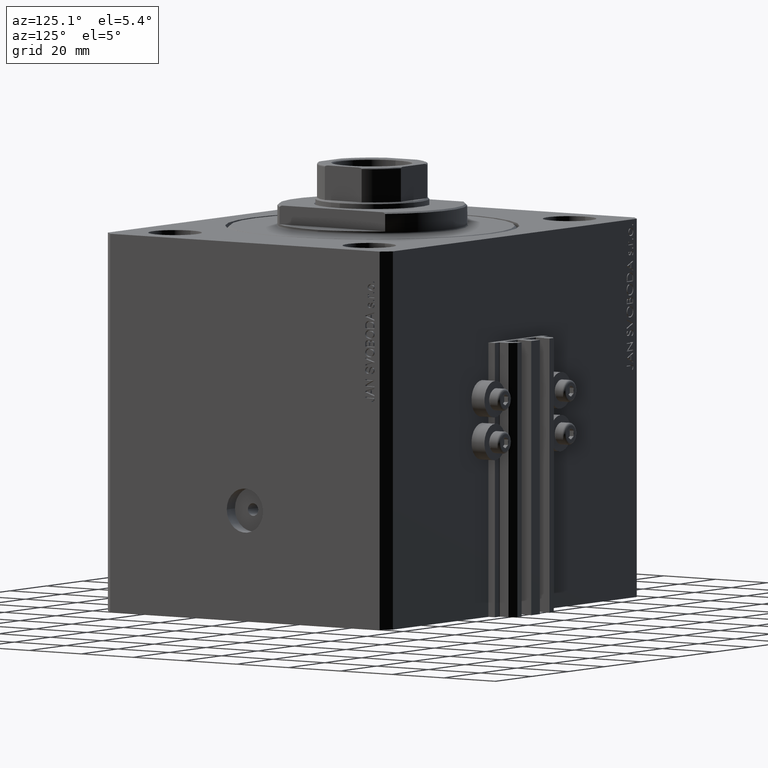
[diagram: clean part render]
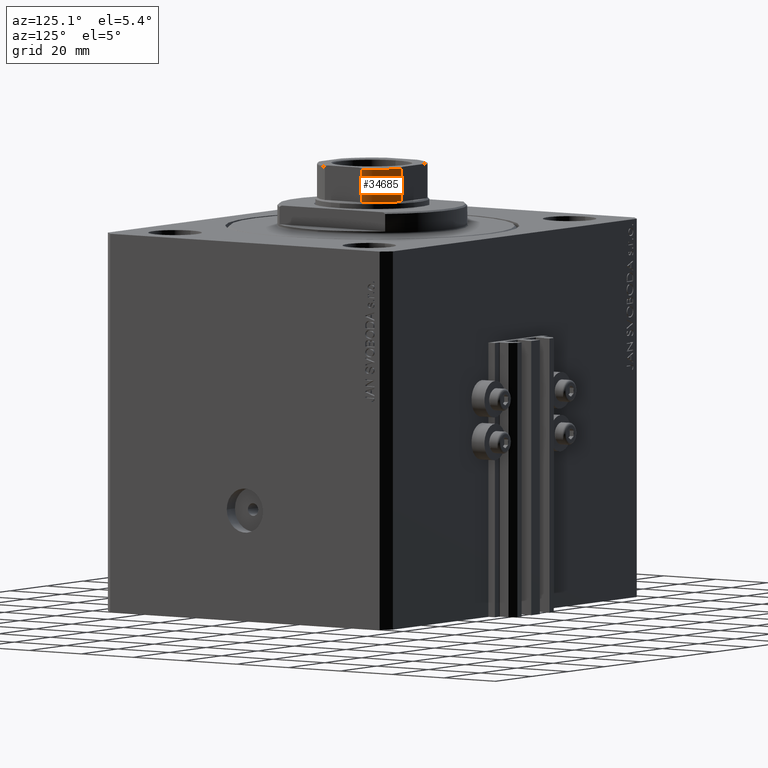
[diagram: same view with one face highlighted and labeled with its STEP entity id]
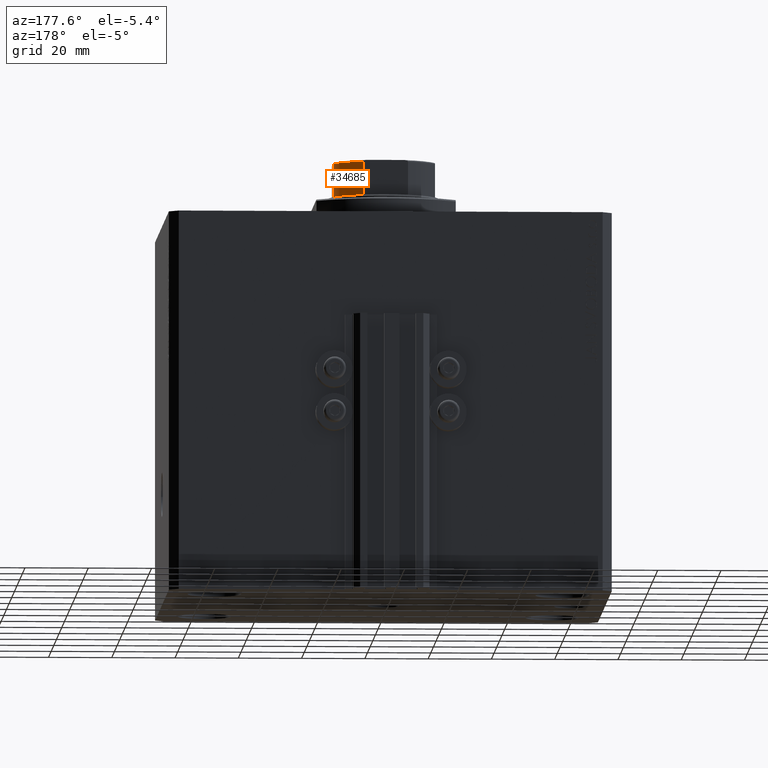
[diagram: same view with one face highlighted and labeled with its STEP entity id]
A machine part, auxiliary view. The second image highlights one B-rep face of the part: STEP entity #34685.
A second angle (auxiliary view) of the same face is appended — the face is thin or edge-on in the first view.
In plain terms, the highlighted cylindrical surface (partial cylindrical patch) has radius 17.5 mm, axis along (0, 0, 1).
Its self-contained STEP definition (entity closure, byte-faithful):
#326 = EDGE_LOOP ( 'NONE', ( #38167, #36736, #36954, #15795 ) ) ;
#2022 = FACE_OUTER_BOUND ( 'NONE', #326, .T. ) ;
#4666 = DIRECTION ( 'NONE',  ( -0.000000000000000000, -0.000000000000000000, 1.000000000000000000 ) ) ;
#5081 = CARTESIAN_POINT ( 'NONE',  ( 0.000000000000000000, 0.000000000000000000, 114.5000000000000000 ) ) ;
#5628 = CARTESIAN_POINT ( 'NONE',  ( 7.088723439378914470, 16.00000000000000000, -0.001000000000001000089 ) ) ;
#5953 = EDGE_CURVE ( 'NONE', #35031, #33012, #34857, .T. ) ;
#8906 = EDGE_CURVE ( 'NONE', #19178, #9373, #12016, .T. ) ;
#9373 = VERTEX_POINT ( 'NONE', #24600 ) ;
#10037 = CARTESIAN_POINT ( 'NONE',  ( 7.088723439378916247, 16.00000000000000355, 104.0000000000000284 ) ) ;
#11330 = DIRECTION ( 'NONE',  ( 0.000000000000000000, 0.000000000000000000, 1.000000000000000000 ) ) ;
#12016 = LINE ( 'NONE', #19428, #34002 ) ;
#12297 = CARTESIAN_POINT ( 'NONE',  ( 16.00000000000000000, 7.088723439378916247, 104.0000000000000284 ) ) ;
#13137 = AXIS2_PLACEMENT_3D ( 'NONE', #38185, #4666, #30302 ) ;
#15795 = ORIENTED_EDGE ( 'NONE', *, *, #25297, .T. ) ;
#15856 = DIRECTION ( 'NONE',  ( 1.000000000000000000, -1.776356839400250465E-15, 0.000000000000000000 ) ) ;
#17880 = CARTESIAN_POINT ( 'NONE',  ( 7.088723439378914470, 16.00000000000000000, 114.5000000000000000 ) ) ;
#18719 = AXIS2_PLACEMENT_3D ( 'NONE', #5081, #26156, #15856 ) ;
#19178 = VERTEX_POINT ( 'NONE', #12297 ) ;
#19428 = CARTESIAN_POINT ( 'NONE',  ( 16.00000000000000000, 7.088723439378916247, -0.001000000000001000089 ) ) ;
#20706 = DIRECTION ( 'NONE',  ( -0.000000000000000000, -0.000000000000000000, 1.000000000000000000 ) ) ;
#24600 = CARTESIAN_POINT ( 'NONE',  ( 16.00000000000000000, 7.088723439378916247, 114.5000000000000000 ) ) ;
#25297 = EDGE_CURVE ( 'NONE', #19178, #35031, #39776, .T. ) ;
#25925 = DIRECTION ( 'NONE',  ( 1.000000000000000000, 0.000000000000000000, 0.000000000000000000 ) ) ;
#26156 = DIRECTION ( 'NONE',  ( 0.000000000000000000, -0.000000000000000000, -1.000000000000000000 ) ) ;
#28693 = CIRCLE ( 'NONE', #18719, 17.50000000000000000 ) ;
#29534 = CARTESIAN_POINT ( 'NONE',  ( 0.000000000000000000, 0.000000000000000000, 104.0000000000000142 ) ) ;
#30302 = DIRECTION ( 'NONE',  ( 1.000000000000000000, 0.000000000000000000, 0.000000000000000000 ) ) ;
#32110 = AXIS2_PLACEMENT_3D ( 'NONE', #29534, #11330, #25925 ) ;
#33012 = VERTEX_POINT ( 'NONE', #17880 ) ;
#34002 = VECTOR ( 'NONE', #41463, 1000.000000000000000 ) ;
#34353 = CYLINDRICAL_SURFACE ( 'NONE', #13137, 17.50000000000000000 ) ;
#34685 = ADVANCED_FACE ( 'NONE', ( #2022 ), #34353, .T. ) ;
#34857 = LINE ( 'NONE', #5628, #40068 ) ;
#35031 = VERTEX_POINT ( 'NONE', #10037 ) ;
#36736 = ORIENTED_EDGE ( 'NONE', *, *, #46036, .T. ) ;
#36954 = ORIENTED_EDGE ( 'NONE', *, *, #8906, .F. ) ;
#38167 = ORIENTED_EDGE ( 'NONE', *, *, #5953, .T. ) ;
#38185 = CARTESIAN_POINT ( 'NONE',  ( 0.000000000000000000, 0.000000000000000000, -0.001000000000001000089 ) ) ;
#39776 = CIRCLE ( 'NONE', #32110, 17.50000000000001421 ) ;
#40068 = VECTOR ( 'NONE', #20706, 1000.000000000000000 ) ;
#41463 = DIRECTION ( 'NONE',  ( -0.000000000000000000, -0.000000000000000000, 1.000000000000000000 ) ) ;
#46036 = EDGE_CURVE ( 'NONE', #33012, #9373, #28693, .T. ) ;